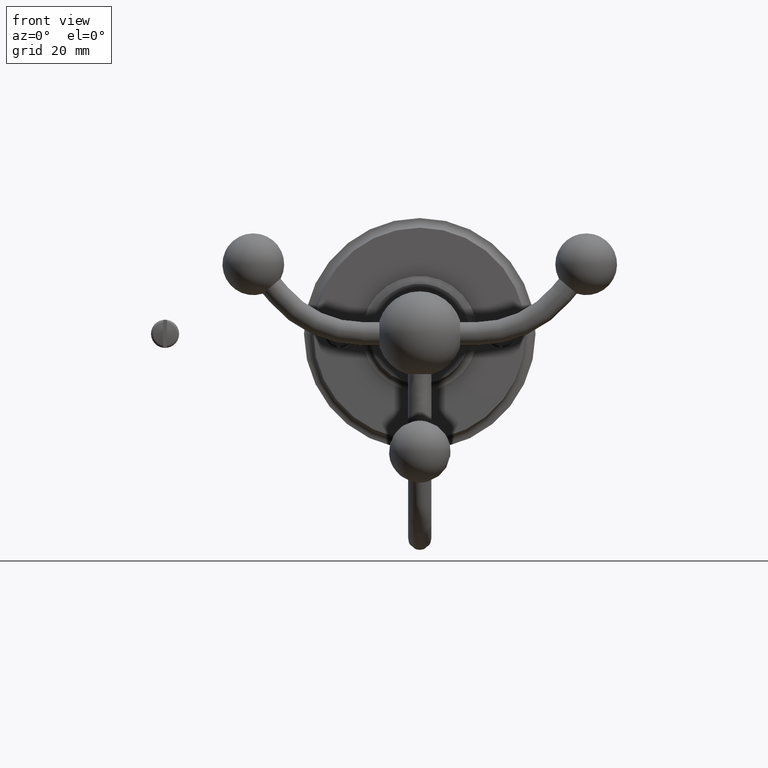
[diagram: clean part render]
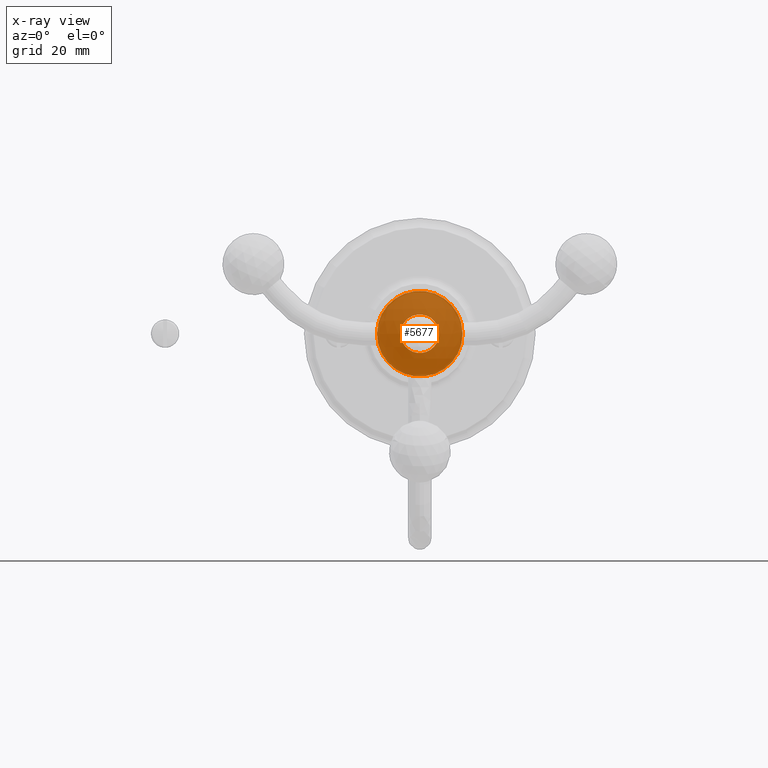
[diagram: x-ray — body ghosted, one internal face saturated and labeled with its STEP entity id]
A machine part, front view, then the same camera in x-ray: the body is ghosted and one INTERNAL B-rep face — a face not visible from any outside direction — is saturated and labeled: STEP entity #5677.
In plain terms, the highlighted planar face has unit normal (0, -1, 0).
Its self-contained STEP definition (entity closure, byte-faithful):
#4862=CARTESIAN_POINT('',(0.E0,5.E0,0.E0));
#4863=DIRECTION('',(0.E0,1.E0,0.E0));
#4864=DIRECTION('',(-1.E0,0.E0,0.E0));
#4865=AXIS2_PLACEMENT_3D('',#4862,#4863,#4864);
#4867=CARTESIAN_POINT('',(0.E0,5.E0,0.E0));
#4868=DIRECTION('',(0.E0,1.E0,0.E0));
#4869=DIRECTION('',(1.E0,0.E0,0.E0));
#4870=AXIS2_PLACEMENT_3D('',#4867,#4868,#4869);
#4872=CARTESIAN_POINT('',(0.E0,5.E0,0.E0));
#4873=DIRECTION('',(0.E0,1.E0,0.E0));
#4874=DIRECTION('',(-1.E0,0.E0,0.E0));
#4875=AXIS2_PLACEMENT_3D('',#4872,#4873,#4874);
#4877=CARTESIAN_POINT('',(0.E0,5.E0,0.E0));
#4878=DIRECTION('',(0.E0,1.E0,0.E0));
#4879=DIRECTION('',(1.E0,0.E0,0.E0));
#4880=AXIS2_PLACEMENT_3D('',#4877,#4878,#4879);
#5182=CARTESIAN_POINT('',(-1.11E1,5.E0,0.E0));
#5183=CARTESIAN_POINT('',(1.11E1,5.E0,0.E0));
#5184=VERTEX_POINT('',#5182);
#5185=VERTEX_POINT('',#5183);
#5190=CARTESIAN_POINT('',(-5.E0,5.E0,0.E0));
#5191=CARTESIAN_POINT('',(5.E0,5.E0,0.E0));
#5192=VERTEX_POINT('',#5190);
#5193=VERTEX_POINT('',#5191);
#5662=CARTESIAN_POINT('',(0.E0,5.E0,0.E0));
#5663=DIRECTION('',(0.E0,1.E0,0.E0));
#5664=DIRECTION('',(-1.E0,0.E0,0.E0));
#5665=AXIS2_PLACEMENT_3D('',#5662,#5663,#5664);
#5666=PLANE('',#5665);
#5667=ORIENTED_EDGE('',*,*,#5642,.F.);
#5668=ORIENTED_EDGE('',*,*,#5656,.F.);
#5669=EDGE_LOOP('',(#5667,#5668));
#5670=FACE_OUTER_BOUND('',#5669,.F.);
#5672=ORIENTED_EDGE('',*,*,#5671,.T.);
#5674=ORIENTED_EDGE('',*,*,#5673,.T.);
#5675=EDGE_LOOP('',(#5672,#5674));
#5676=FACE_BOUND('',#5675,.F.);
#5677=ADVANCED_FACE('',(#5670,#5676),#5666,.T.);
#4866=CIRCLE('',#4865,1.11E1);
#4871=CIRCLE('',#4870,1.11E1);
#4876=CIRCLE('',#4875,5.E0);
#4881=CIRCLE('',#4880,5.E0);
#5642=EDGE_CURVE('',#5184,#5185,#4866,.T.);
#5656=EDGE_CURVE('',#5185,#5184,#4871,.T.);
#5671=EDGE_CURVE('',#5192,#5193,#4876,.T.);
#5673=EDGE_CURVE('',#5193,#5192,#4881,.T.);